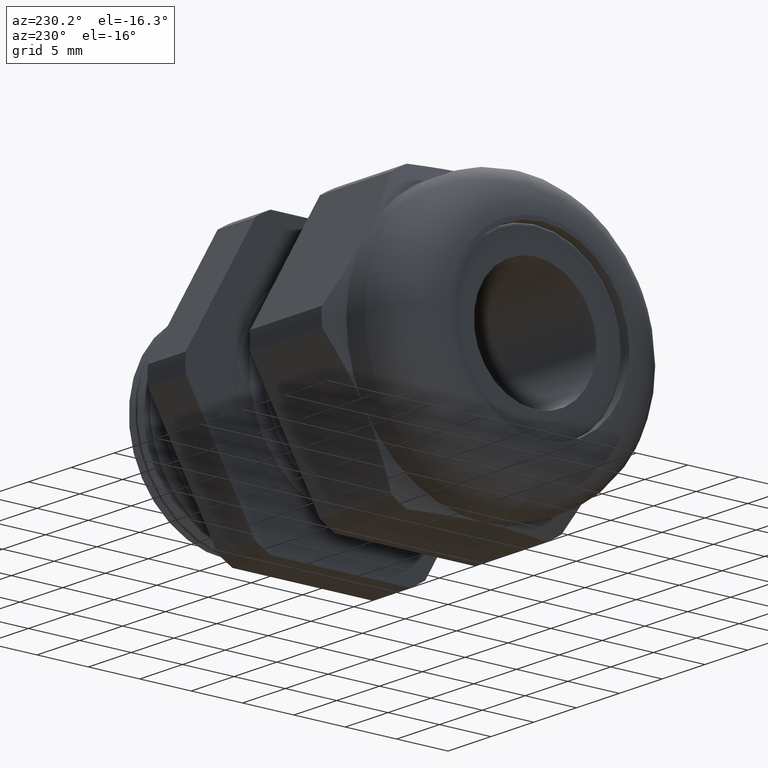
[diagram: clean part render]
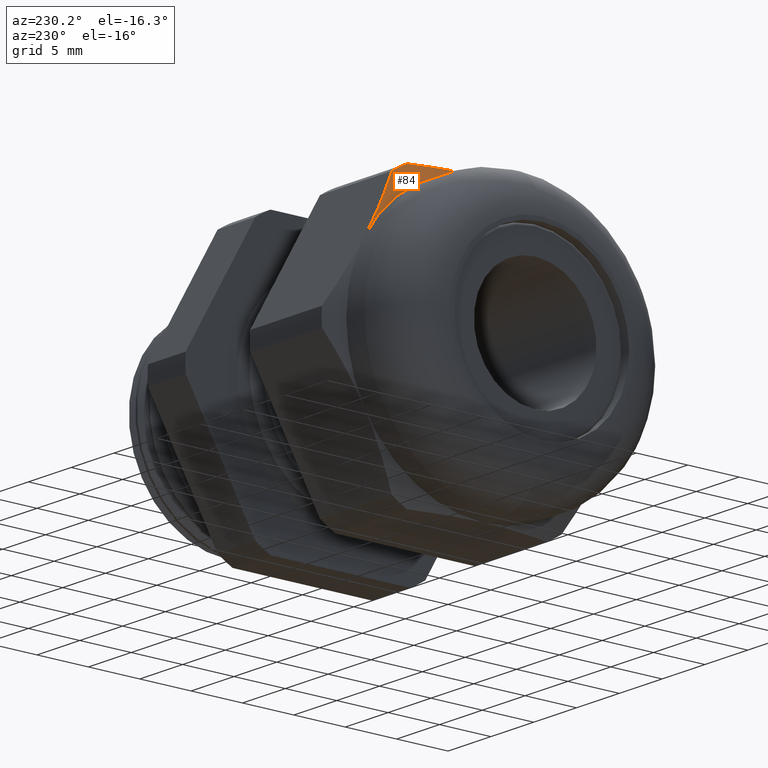
[diagram: same view with one face highlighted and labeled with its STEP entity id]
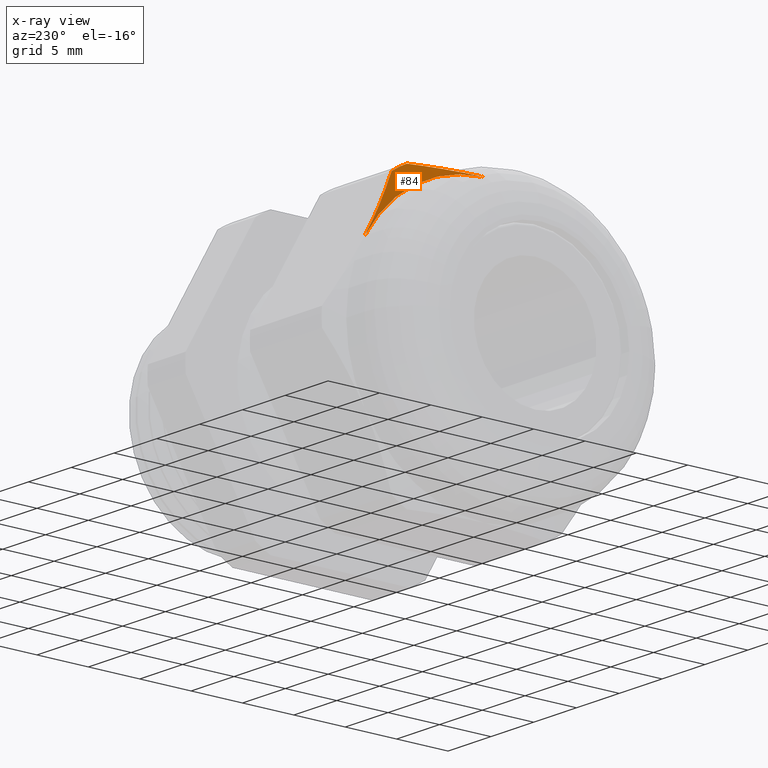
[diagram: x-ray of the same camera — body ghosted, the highlighted face saturated]
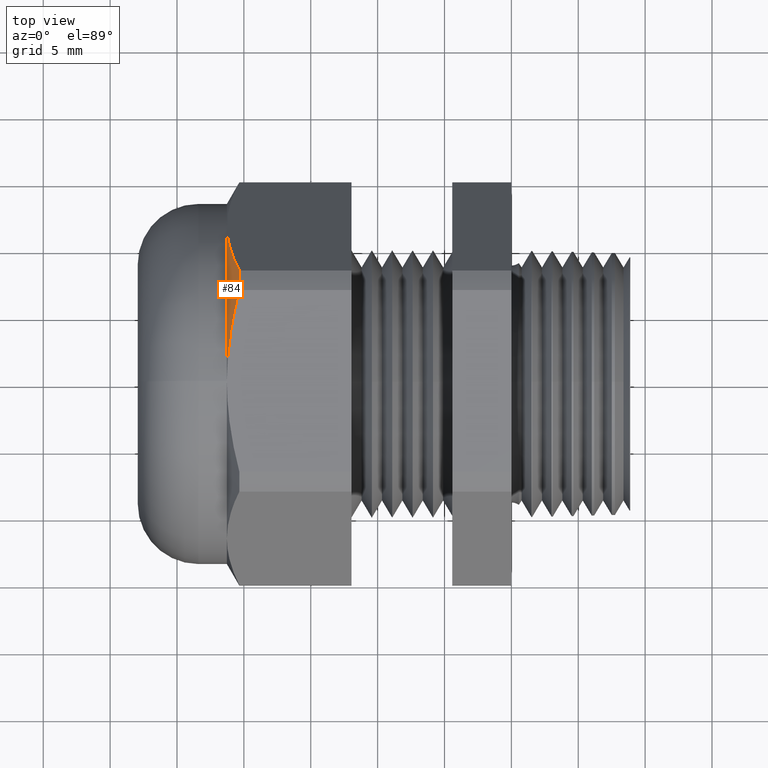
[diagram: same view with one face highlighted and labeled with its STEP entity id]
A machine part, auxiliary view. The second image highlights one B-rep face of the part: STEP entity #84.
The next image is the same camera in x-ray: the body ghosted, the highlighted face saturated — about 1% of this face is hidden behind the body in this view.
A second angle (top view) of the same face is appended — the face is thin or edge-on in the first view.
In plain terms, the highlighted conical surface has half-angle 60 deg.
Its self-contained STEP definition (entity closure, byte-faithful):
#73 = ORIENTED_EDGE ( 'NONE', *, *, #232, .T. ) ;
#74 = ORIENTED_EDGE ( 'NONE', *, *, #418, .F. ) ;
#75 = EDGE_LOOP ( 'NONE', ( #74, #1203, #73, #1201 ) ) ;
#84 = ADVANCED_FACE ( 'NONE', ( #1049 ), #1046, .T. ) ;
#230 = VERTEX_POINT ( 'NONE', #1391 ) ;
#231 = VERTEX_POINT ( 'NONE', #1390 ) ;
#232 = EDGE_CURVE ( 'NONE', #231, #230, #1388, .T. ) ;
#418 = EDGE_CURVE ( 'NONE', #454, #496, #1724, .T. ) ;
#454 = VERTEX_POINT ( 'NONE', #1789 ) ;
#496 = VERTEX_POINT ( 'NONE', #1848 ) ;
#609 = EDGE_CURVE ( 'NONE', #231, #454, #2064, .T. ) ;
#857 = EDGE_CURVE ( 'NONE', #496, #230, #2498, .T. ) ;
#1043 = DIRECTION ( 'NONE',  ( 0.0000000000000000000, 0.0000000000000000000, 1.000000000000000000 ) ) ;
#1044 = DIRECTION ( 'NONE',  ( 1.000000000000000000, 0.0000000000000000000, 0.0000000000000000000 ) ) ;
#1045 = AXIS2_PLACEMENT_3D ( 'NONE', #1048, #1044, #1043 ) ;
#1046 = CONICAL_SURFACE ( 'NONE', #1045, 0.5299999999999996900, 1.047197551196600100 ) ;
#1048 = CARTESIAN_POINT ( 'NONE',  ( -0.8375000000000000200, 0.0000000000000000000, 0.0000000000000000000 ) ) ;
#1049 = FACE_OUTER_BOUND ( 'NONE', #75, .T. ) ;
#1201 = ORIENTED_EDGE ( 'NONE', *, *, #857, .F. ) ;
#1203 = ORIENTED_EDGE ( 'NONE', *, *, #609, .F. ) ;
#1384 = DIRECTION ( 'NONE',  ( 0.0000000000000000000, 0.0000000000000000000, -1.000000000000000000 ) ) ;
#1385 = DIRECTION ( 'NONE',  ( -1.000000000000000000, 0.0000000000000000000, 0.0000000000000000000 ) ) ;
#1386 = CARTESIAN_POINT ( 'NONE',  ( -0.8007805228795397100, 0.0000000000000000000, 0.0000000000000000000 ) ) ;
#1387 = AXIS2_PLACEMENT_3D ( 'NONE', #1386, #1385, #1384 ) ;
#1388 = CIRCLE ( 'NONE', #1387, 0.5936000000000001300 ) ;
#1390 = CARTESIAN_POINT ( 'NONE',  ( -0.8007805228795397100, 0.2673218285138723200, 0.5299999999999999200 ) ) ;
#1391 = CARTESIAN_POINT ( 'NONE',  ( -0.8007805228795397100, 0.3253325497488160900, 0.4965074944791208500 ) ) ;
#1720 = DIRECTION ( 'NONE',  ( 0.0000000000000000000, 0.0000000000000000000, 1.000000000000000000 ) ) ;
#1721 = DIRECTION ( 'NONE',  ( -1.000000000000000000, 0.0000000000000000000, 0.0000000000000000000 ) ) ;
#1722 = CARTESIAN_POINT ( 'NONE',  ( -0.8375000000000000200, 0.0000000000000000000, 0.0000000000000000000 ) ) ;
#1723 = AXIS2_PLACEMENT_3D ( 'NONE', #1722, #1721, #1720 ) ;
#1724 = CIRCLE ( 'NONE', #1723, 0.5299999999999996900 ) ;
#1789 = CARTESIAN_POINT ( 'NONE',  ( -0.8375000000000000200, 0.0000000000000000000, 0.5299999999999996900 ) ) ;
#1848 = CARTESIAN_POINT ( 'NONE',  ( -0.8375000000000000200, 0.4589934640057525300, 0.2649999999999999600 ) ) ;
#2056 = CARTESIAN_POINT ( 'NONE',  ( -0.8375000000000000200, 0.0000000000000000000, 0.5299999999999996900 ) ) ;
#2057 = CARTESIAN_POINT ( 'NONE',  ( -0.8374999999999996900, 0.02248601894749247000, 0.5300000000000000300 ) ) ;
#2058 = CARTESIAN_POINT ( 'NONE',  ( -0.8366704751326135000, 0.04502350460591592100, 0.5300000000000001400 ) ) ;
#2059 = CARTESIAN_POINT ( 'NONE',  ( -0.8333698439661925100, 0.09020032554817343500, 0.5299999999999999200 ) ) ;
#2060 = CARTESIAN_POINT ( 'NONE',  ( -0.8308887136721118100, 0.1128690294926516700, 0.5299999999999998000 ) ) ;
#2061 = CARTESIAN_POINT ( 'NONE',  ( -0.8213051833091241600, 0.1800017858002749500, 0.5299999999999999200 ) ) ;
#2062 = CARTESIAN_POINT ( 'NONE',  ( -0.8120576945526086800, 0.2239487460126228000, 0.5300000000000001400 ) ) ;
#2063 = CARTESIAN_POINT ( 'NONE',  ( -0.8007805228795397100, 0.2673218285138723200, 0.5299999999999999200 ) ) ;
#2064 = B_SPLINE_CURVE_WITH_KNOTS ( 'NONE', 3,
 ( #2063, #2062, #2061, #2060, #2059, #2058, #2057, #2056 ),
 .UNSPECIFIED., .F., .F.,
 ( 4, 2, 2, 4 ),
 ( 0.007282999526850545900, 0.01069714918960657100, 0.01240422402098458200, 0.01411129885236259500 ),
 .UNSPECIFIED. ) ;
#2486 = CARTESIAN_POINT ( 'NONE',  ( -0.8007805228795397100, 0.3253325497488160900, 0.4965074944791208500 ) ) ;
#2487 = CARTESIAN_POINT ( 'NONE',  ( -0.8121583111907521000, 0.3472125816136487600, 0.4586101676180044900 ) ) ;
#2488 = CARTESIAN_POINT ( 'NONE',  ( -0.8214003591281861000, 0.3692675418263460800, 0.4204098559707027400 ) ) ;
#2489 = CARTESIAN_POINT ( 'NONE',  ( -0.8309221305962483100, 0.4027055574402840200, 0.3624935140230810500 ) ) ;
#2490 = CARTESIAN_POINT ( 'NONE',  ( -0.8333721404368326100, 0.4139108550001432400, 0.3430853693354771200 ) ) ;
#2491 = CARTESIAN_POINT ( 'NONE',  ( -0.8366665420851501200, 0.4364529586652057300, 0.3040413004781044600 ) ) ;
#2492 = CARTESIAN_POINT ( 'NONE',  ( -0.8375000000000000200, 0.4477627782903754200, 0.2844521182628707000 ) ) ;
#2493 = CARTESIAN_POINT ( 'NONE',  ( -0.8375000000000000200, 0.4589934640057525300, 0.2649999999999999600 ) ) ;
#2498 = B_SPLINE_CURVE_WITH_KNOTS ( 'NONE', 3,
 ( #2493, #2492, #2491, #2490, #2489, #2488, #2487, #2486 ),
 .UNSPECIFIED., .F., .F.,
 ( 4, 2, 2, 4 ),
 ( 0.006851532669467769000, 0.008552772946843112700, 0.01025401322421845400, 0.01365649377896914100 ),
 .UNSPECIFIED. ) ;